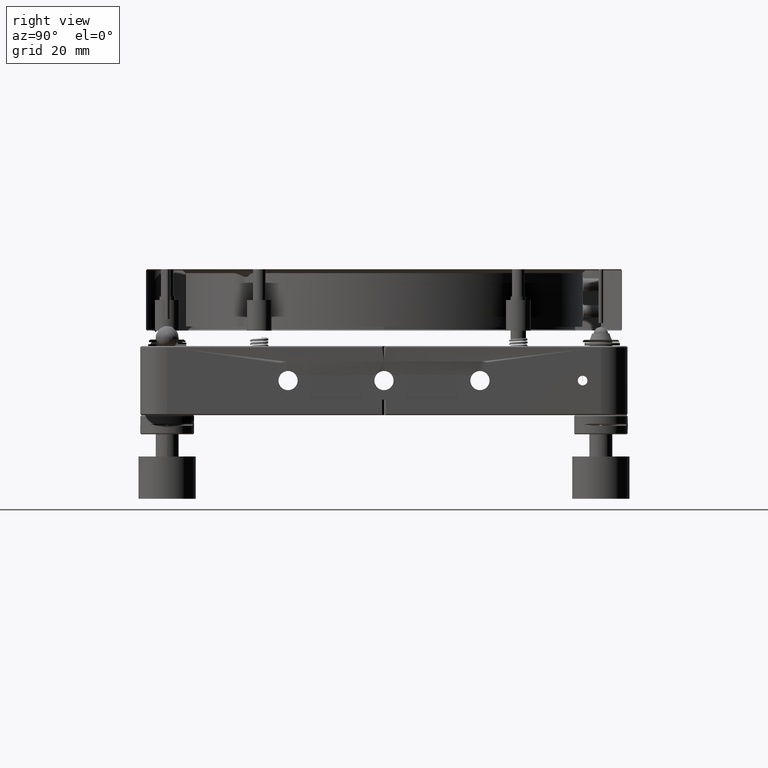
[diagram: clean part render]
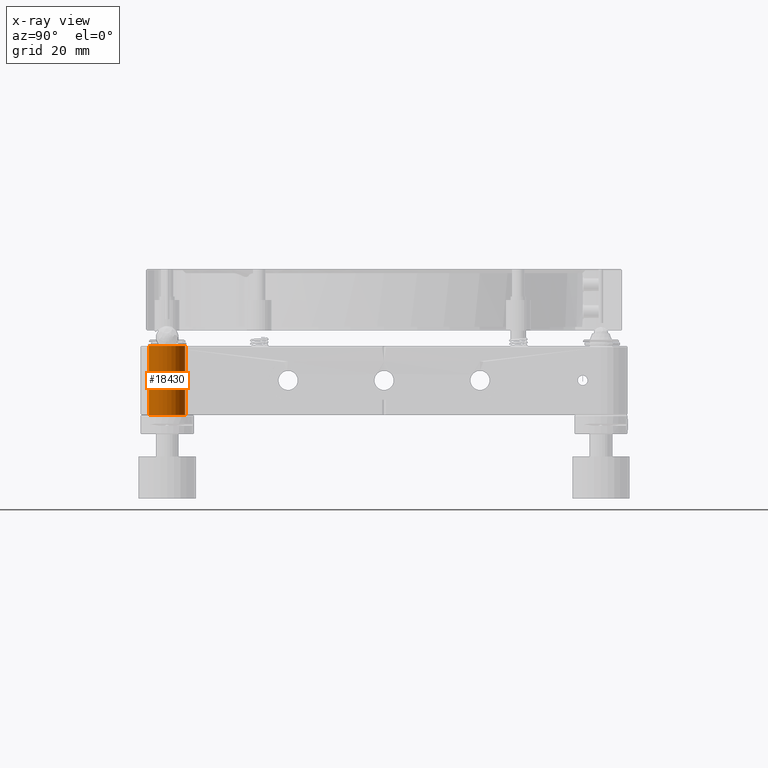
[diagram: x-ray — body ghosted, one internal face saturated and labeled with its STEP entity id]
A machine part, right view, then the same camera in x-ray: the body is ghosted and one INTERNAL B-rep face — a face not visible from any outside direction — is saturated and labeled: STEP entity #18430.
In plain terms, the highlighted cylindrical surface (bore or boss wall) has radius 4.75 mm, axis along (0, 0, 1).
Its self-contained STEP definition (entity closure, byte-faithful):
#158 = CARTESIAN_POINT ( 'NONE',  ( 51.83963013020094479, -55.58121567309463273, -1.246652364468173957 ) ) ;
#268 = CARTESIAN_POINT ( 'NONE',  ( 51.95817678557235553, -55.09883759834312400, -1.233225530988809160 ) ) ;
#325 = CARTESIAN_POINT ( 'NONE',  ( 52.90948984755967643, -59.60978625027490807, -0.4671262269104471399 ) ) ;
#411 = CARTESIAN_POINT ( 'NONE',  ( 56.50000000000000000, -56.49999999999997868, 9.000000000000001776 ) ) ;
#427 = CARTESIAN_POINT ( 'NONE',  ( 51.75000000000000711, -56.75524200507437200, 1.249999999999990896 ) ) ;
#482 = CARTESIAN_POINT ( 'NONE',  ( 52.60676671297941454, -53.77840083499267365, -0.9107877955616463517 ) ) ;
#531 = CARTESIAN_POINT ( 'NONE',  ( 52.35241392742734234, -58.82076016680218800, 1.099393770590665564 ) ) ;
#592 = CARTESIAN_POINT ( 'NONE',  ( 52.65555730412518898, -53.71022128200144152, -0.8617038190297797717 ) ) ;
#643 = CARTESIAN_POINT ( 'NONE',  ( 51.75000000000000711, -56.49999999999997868, 1.249999999999990674 ) ) ;
#645 = FACE_OUTER_BOUND ( 'NONE', #1997, .T. ) ;
#699 = CARTESIAN_POINT ( 'NONE',  ( 52.21942940587179294, -54.44080892585230913, 1.158574036355638270 ) ) ;
#753 = CARTESIAN_POINT ( 'NONE',  ( 52.89654190907567965, -59.59477437815920098, 0.4980446269706901297 ) ) ;
#806 = CARTESIAN_POINT ( 'NONE',  ( 52.95608324729745675, -53.33711602950457120, -0.3385246346343642743 ) ) ;
#862 = CARTESIAN_POINT ( 'NONE',  ( 51.89752413285012267, -57.67621333665911720, -1.241379538290144691 ) ) ;
#918 = CARTESIAN_POINT ( 'NONE',  ( 52.68415686764897288, -53.67124329905084323, 0.8305868746530362667 ) ) ;
#1016 = EDGE_CURVE ( 'NONE', #12955, #12955, #6164, .T. ) ;
#1032 = CARTESIAN_POINT ( 'NONE',  ( 52.11821499218798692, -54.66432527305133249, 1.195041825235785948 ) ) ;
#1090 = CARTESIAN_POINT ( 'NONE',  ( 52.67494531118860834, -59.31628675816777019, -0.8408252169409401455 ) ) ;
#1146 = CARTESIAN_POINT ( 'NONE',  ( 52.98900425387397917, -53.30071075431168026, 0.1693498376448943077 ) ) ;
#1202 = CARTESIAN_POINT ( 'NONE',  ( 52.71250390512398099, -59.36670155956729644, -0.7979159601737559893 ) ) ;
#1268 = EDGE_CURVE ( 'NONE', #6010, #18295, #10537, .T. ) ;
#1317 = CARTESIAN_POINT ( 'NONE',  ( 52.07110803341970495, -58.21733148007632508, -1.208351370596022489 ) ) ;
#1944 = CARTESIAN_POINT ( 'NONE',  ( 51.83401107047206580, -55.61001606071156544, -1.246979576963765268 ) ) ;
#1997 = EDGE_LOOP ( 'NONE', ( #13276 ) ) ;
#2104 = CARTESIAN_POINT ( 'NONE',  ( 52.65515084643900678, -59.28921853726073721, 0.8621307196366957415 ) ) ;
#2205 = CARTESIAN_POINT ( 'NONE',  ( 52.66650235471627184, -59.30478351395908021, 0.8500196251934206693 ) ) ;
#2261 = CARTESIAN_POINT ( 'NONE',  ( 52.63949463706163812, -53.73243183127801359, -0.8783913834846904800 ) ) ;
#2366 = CARTESIAN_POINT ( 'NONE',  ( 52.76072138413938006, -53.57057833250709677, 0.7364670798159901333 ) ) ;
#2421 = CARTESIAN_POINT ( 'NONE',  ( 52.17551003702303802, -58.46502003893687061, 1.175344519985096481 ) ) ;
#2479 = CARTESIAN_POINT ( 'NONE',  ( 51.86377503015284418, -55.46656666616790687, 1.244812772979155380 ) ) ;
#2533 = CARTESIAN_POINT ( 'NONE',  ( 52.18800942727093428, -58.49230423551371416, -1.170749297480309314 ) ) ;
#2589 = CARTESIAN_POINT ( 'NONE',  ( 51.94908524712035813, -55.13656096658643690, 1.234469859195693298 ) ) ;
#2704 = CARTESIAN_POINT ( 'NONE',  ( 52.83859975247499818, -53.47338566512480185, 0.6186842006813190187 ) ) ;
#2756 = CARTESIAN_POINT ( 'NONE',  ( 51.99653459297263680, -58.01040365417529898, -1.225795566611023846 ) ) ;
#2817 = CARTESIAN_POINT ( 'NONE',  ( 51.99647651750669297, -54.98976950469769065, 1.225808721972149407 ) ) ;
#2983 = CARTESIAN_POINT ( 'NONE',  ( 51.75000000000001421, -56.75506608117070328, -1.249999999999991118 ) ) ;
#3497 = CARTESIAN_POINT ( 'NONE',  ( 52.18026367348950600, -54.52454634192662297, -1.173618648644356499 ) ) ;
#3608 = CARTESIAN_POINT ( 'NONE',  ( 51.85572234641507805, -55.50338528130389903, -1.245514199850097814 ) ) ;
#3662 = CARTESIAN_POINT ( 'NONE',  ( 52.93812556782636136, -59.64255256502151070, -0.3894453545636706870 ) ) ;
#3715 = CARTESIAN_POINT ( 'NONE',  ( 52.26631229329103689, -54.33703623918297865, -1.141857201560756652 ) ) ;
#3769 = CARTESIAN_POINT ( 'NONE',  ( 52.89327794804412264, -59.59096908178098317, 0.5054754897701434491 ) ) ;
#3820 = CARTESIAN_POINT ( 'NONE',  ( 51.85866038234621556, -55.48981764401247574, -1.245267512304593094 ) ) ;
#3873 = CARTESIAN_POINT ( 'NONE',  ( 51.85112560587545971, -57.47504563842522884, 1.245877198309006673 ) ) ;
#3895 = AXIS2_PLACEMENT_3D ( 'NONE', #4206, #5989, #15840 ) ;
#3986 = CARTESIAN_POINT ( 'NONE',  ( 52.15823728329703357, -58.42668157541505991, 1.181455424084209893 ) ) ;
#4093 = CARTESIAN_POINT ( 'NONE',  ( 52.60634183332897607, -59.22099167461250602, 0.9111867238760400500 ) ) ;
#4149 = CARTESIAN_POINT ( 'NONE',  ( 52.99783102578385297, -53.29105075095761634, 0.08454399465350427578 ) ) ;
#4203 = CARTESIAN_POINT ( 'NONE',  ( 51.86060914557158696, -57.51909863940166900, -1.245096809263467330 ) ) ;
#4206 = CARTESIAN_POINT ( 'NONE',  ( 56.50000000000000000, -56.49999999999997868, -9.000000000000001776 ) ) ;
#4264 = CARTESIAN_POINT ( 'NONE',  ( 51.86044602291694616, -55.48164423912800913, 1.245111289791943632 ) ) ;
#4317 = CARTESIAN_POINT ( 'NONE',  ( 52.15050568670812936, -58.41059839029890099, -1.184601335666807032 ) ) ;
#4376 = CARTESIAN_POINT ( 'NONE',  ( 51.86846999175777739, -55.44563236207375923, 1.244379357600756686 ) ) ;
#4433 = CARTESIAN_POINT ( 'NONE',  ( 52.68422143889025477, -59.32884380846566330, -0.8305143037295669162 ) ) ;
#4486 = CARTESIAN_POINT ( 'NONE',  ( 52.96507992516159646, -53.32714623070128113, 0.2950021569652557796 ) ) ;
#4539 = CARTESIAN_POINT ( 'NONE',  ( 51.81553686150226667, -57.30452181574425197, -1.248005662686368256 ) ) ;
#4653 = CARTESIAN_POINT ( 'NONE',  ( 51.84110746466127040, -57.42977652643260456, -1.246809060298195160 ) ) ;
#5448 = CARTESIAN_POINT ( 'NONE',  ( 53.00008649816203388, -59.71140241889889211, -0.08502986227146409892 ) ) ;
#5505 = CARTESIAN_POINT ( 'NONE',  ( 52.76082931135520937, -53.57000428074626797, -0.7389398376298031978 ) ) ;
#5553 = CARTESIAN_POINT ( 'NONE',  ( 52.17976845552311715, -58.47437041256933554, 1.173800082044121229 ) ) ;
#5608 = CARTESIAN_POINT ( 'NONE',  ( 51.77007348550007038, -56.03161418387185222, -1.249597276928493761 ) ) ;
#5659 = CARTESIAN_POINT ( 'NONE',  ( 51.85888088063377666, -57.51119491324600830, 1.245248834414059091 ) ) ;
#5769 = CARTESIAN_POINT ( 'NONE',  ( 51.90400962228702042, -57.71776696922444216, 1.241282777378503122 ) ) ;
#5783 = EDGE_LOOP ( 'NONE', ( #20940 ) ) ;
#5824 = CARTESIAN_POINT ( 'NONE',  ( 51.99874621512071826, -54.98301362036440310, 1.225350375440184214 ) ) ;
#5879 = CARTESIAN_POINT ( 'NONE',  ( 52.13381512849083066, -58.37111878331591441, 1.189626560648923581 ) ) ;
#5936 = CARTESIAN_POINT ( 'NONE',  ( 52.20099113211828268, -54.47977920006513131, 1.165823166619124995 ) ) ;
#5989 = DIRECTION ( 'NONE',  ( 0.000000000000000000, 0.000000000000000000, 1.000000000000000000 ) ) ;
#6010 = VERTEX_POINT ( 'NONE', #12165 ) ;
#6044 = CARTESIAN_POINT ( 'NONE',  ( 51.75000000000000711, -56.49999999999997868, 1.249999999999990674 ) ) ;
#6149 = CARTESIAN_POINT ( 'NONE',  ( 52.90854544786549241, -53.39129030551331567, 0.4696943907504245730 ) ) ;
#6164 = CIRCLE ( 'NONE', #21842, 4.749999999999997335 ) ;
#6208 = CARTESIAN_POINT ( 'NONE',  ( 52.11833426066809238, -58.33596056743274971, -1.195004846723017655 ) ) ;
#6268 = CARTESIAN_POINT ( 'NONE',  ( 51.75000000000000711, -56.24512599253943534, 1.249999999999990674 ) ) ;
#6327 = CARTESIAN_POINT ( 'NONE',  ( 52.20112989963170236, -58.52051603309638494, -1.165769480766795763 ) ) ;
#7127 = CARTESIAN_POINT ( 'NONE',  ( 52.11261340914817453, -58.32064829819749718, 1.196057777072289996 ) ) ;
#7179 = CARTESIAN_POINT ( 'NONE',  ( 52.47781563462483945, -53.97195716768685259, -1.017135657092233192 ) ) ;
#7230 = CARTESIAN_POINT ( 'NONE',  ( 52.96551865143495519, -59.67487634009545872, 0.3355919955507555286 ) ) ;
#7288 = CARTESIAN_POINT ( 'NONE',  ( 51.81665927454797327, -55.70443978229326376, -1.247885703874632934 ) ) ;
#7341 = CARTESIAN_POINT ( 'NONE',  ( 52.96690811136948440, -59.67488806649829058, -0.2902805537472990527 ) ) ;
#7359 = EDGE_LOOP ( 'NONE', ( #19556, #18790 ) ) ;
#7398 = CARTESIAN_POINT ( 'NONE',  ( 52.83673102166429203, -53.47615155299305911, -0.6189273124185862285 ) ) ;
#7451 = CARTESIAN_POINT ( 'NONE',  ( 51.95775292267685330, -57.89979769061262260, 1.233294705601362118 ) ) ;
#7557 = CARTESIAN_POINT ( 'NONE',  ( 51.81644105296688707, -57.29426605285843976, 1.247899527872363246 ) ) ;
#7615 = CARTESIAN_POINT ( 'NONE',  ( 52.25650395717656238, -54.36475865762729853, 1.143090953252663855 ) ) ;
#7669 = CARTESIAN_POINT ( 'NONE',  ( 51.87812618340839066, -57.59626207838149980, -1.243442158951918231 ) ) ;
#7725 = CARTESIAN_POINT ( 'NONE',  ( 51.84097073047816906, -55.57091476299586219, 1.246818641775230052 ) ) ;
#7776 = CARTESIAN_POINT ( 'NONE',  ( 51.85956857298345568, -57.51434606747675815, -1.245188661230877347 ) ) ;
#7835 = CARTESIAN_POINT ( 'NONE',  ( 52.18464935946610694, -54.51498810342392431, 1.172000181460119306 ) ) ;
#7890 = CARTESIAN_POINT ( 'NONE',  ( 52.39512928464701247, -58.89145064556802822, -1.071448363490502986 ) ) ;
#7948 = CARTESIAN_POINT ( 'NONE',  ( 51.86177585114344879, -55.47560441872675341, 1.244992664168030228 ) ) ;
#8006 = CARTESIAN_POINT ( 'NONE',  ( 52.69279561735215367, -59.34039683140411370, -0.8208422494390072988 ) ) ;
#8606 = CARTESIAN_POINT ( 'NONE',  ( 56.50000000000000000, -56.49999999999997868, -9.000000000000001776 ) ) ;
#8800 = CARTESIAN_POINT ( 'NONE',  ( 51.85875535663014091, -57.51062297668399026, 1.245260110592889102 ) ) ;
#8809 = CIRCLE ( 'NONE', #21983, 4.749999999999997335 ) ;
#8819 = DIRECTION ( 'NONE',  ( 1.000000000000000000, 0.000000000000000000, 0.000000000000000000 ) ) ;
#8849 = CARTESIAN_POINT ( 'NONE',  ( 51.85778916802345151, -55.49382317616051097, -1.245342137990935072 ) ) ;
#8904 = CARTESIAN_POINT ( 'NONE',  ( 52.81827730779206576, -59.50139346868952117, 0.6502612768248362540 ) ) ;
#8958 = CARTESIAN_POINT ( 'NONE',  ( 52.04203869636135948, -54.85795567599616618, -1.215097745341029878 ) ) ;
#9010 = CARTESIAN_POINT ( 'NONE',  ( 52.86187613825969578, -59.55396952876093764, 0.5715705434747938574 ) ) ;
#9012 = CYLINDRICAL_SURFACE ( 'NONE', #3895, 4.749999999999997335 ) ;
#9121 = CARTESIAN_POINT ( 'NONE',  ( 52.63908192799858909, -59.26699247939851034, 0.8788089539187101673 ) ) ;
#9175 = CARTESIAN_POINT ( 'NONE',  ( 52.00244603062272830, -54.97207931998134711, 1.224591733944129901 ) ) ;
#9228 = CARTESIAN_POINT ( 'NONE',  ( 52.87414635944917052, -59.56854049639716209, 0.5472223050447604376 ) ) ;
#9286 = CARTESIAN_POINT ( 'NONE',  ( 52.67489052944522854, -53.68378764627790645, 0.8408854720865472920 ) ) ;
#9339 = CARTESIAN_POINT ( 'NONE',  ( 52.83876728484369067, -59.52681761736813115, -0.6183975972955083611 ) ) ;
#9401 = CARTESIAN_POINT ( 'NONE',  ( 52.93020318932883583, -53.36644601338063154, 0.4121354537691231945 ) ) ;
#9515 = CARTESIAN_POINT ( 'NONE',  ( 52.87253341207029678, -53.43309041741640897, 0.5548884094399492151 ) ) ;
#9569 = CARTESIAN_POINT ( 'NONE',  ( 52.52041023765758609, -59.09833878531286899, -0.9890981116033759069 ) ) ;
#9628 = CARTESIAN_POINT ( 'NONE',  ( 53.00003011675630660, -53.28865903112456692, 0.04211514254437905003 ) ) ;
#10316 = CARTESIAN_POINT ( 'NONE',  ( 52.51865290257361352, -53.90840548717005731, -0.9868223872868007174 ) ) ;
#10425 = CARTESIAN_POINT ( 'NONE',  ( 51.85911358417926920, -55.48773328527816773, -1.245228773110127696 ) ) ;
#10537 = B_SPLINE_CURVE_WITH_KNOTS ( 'NONE', 3,
 ( #643, #427, #14158, #19071, #7557, #15730, #21054, #12261, #3873, #12476, #10695, #19285, #5659, #8800, #5769, #7451, #18966, #20842, #7127, #5879, #3986, #12367, #2421, #10799, #5553, #15838, #531, #14266, #12586, #19390, #4093, #9121, #2104, #19177, #2205, #17612, #17721, #15947, #8904, #17293, #9010, #9228, #16051, #3769, #753, #7230, #14375, #5448, #17400, #7341, #21161, #3662, #20947, #15626, #325, #13943, #21377, #9339, #19948, #14942, #14715, #1202, #8006, #4433, #21710, #1090, #12915, #9569, #7890, #11127, #16382, #16606, #21488, #6327, #19725, #2533, #17837, #4317, #6208, #1317, #14833, #11462, #11021, #13032, #11243, #2756, #19836, #21601, #16161, #862, #7669, #18058, #13149, #12804, #4203, #7776, #4653, #4539, #18278, #2983, #14488 ),
 .UNSPECIFIED., .F., .F.,
 ( 4, 2, 2, 2, 1, 1, 1, 2, 2, 2, 2, 1, 1, 1, 2, 2, 2, 2, 1, 1, 1, 2, 2, 2, 2, 1, 2, 2, 2, 2, 2, 1, 2, 2, 2, 2, 1, 1, 2, 2, 2, 2, 1, 1, 1, 2, 2, 2, 1, 1, 1, 2, 2, 2, 1, 1, 1, 1, 2, 2, 2, 4 ),
 ( 0.000000000000000000, 0.06249999999982001897, 0.09374999999973129827, 0.1093749999996869449, 0.1171874999996643657, 0.1210937499996552896, 0.1230468749996530831, 0.1240234374996549288, 0.1249999999996567468, 0.1874999999997307154, 0.2187499999997665201, 0.2343749999997862821, 0.2421874999997961908, 0.2460937499997990496, 0.2480468749997984113, 0.2499999999997977174, 0.3124999999997662981, 0.3437499999997509770, 0.3593749999997422617, 0.3671874999997386535, 0.3710937499997365441, 0.3730468749997362665, 0.3749999999997359335, 0.4062499999997533640, 0.4218749999997621347, 0.4296874999997665201, 0.4335937499997691846, 0.4374999999997718492, 0.4999999999998145928, 0.5312499999998359090, 0.5468749999998471223, 0.5546874999998524514, 0.5585937499998545608, 0.5624999999998567812, 0.5937499999998705480, 0.6093749999998787636, 0.6171874999998826494, 0.6210937499998859801, 0.6230468749998874234, 0.6249999999998889777, 0.6875000000000026645, 0.7187500000000598410, 0.7343750000000884848, 0.7421875000001022515, 0.7460937500001086908, 0.7480468750001114664, 0.7500000000001142419, 0.7812500000001609823, 0.7968750000001842970, 0.8046875000001959544, 0.8085937500002029488, 0.8105468750002063905, 0.8125000000002098322, 0.8437500000002807754, 0.8593750000003170797, 0.8671875000003351763, 0.8710937500003442802, 0.8730468750003488321, 0.8740234375003498313, 0.8750000000003507195, 0.9375000000001754152, 1.000000000000000000 ),
 .UNSPECIFIED. ) ;
#10538 = CARTESIAN_POINT ( 'NONE',  ( 52.66690428450259986, -53.69466722566031791, -0.8495860564886699162 ) ) ;
#10643 = CARTESIAN_POINT ( 'NONE',  ( 51.90441058766410976, -55.28074481405145235, -1.241234525183833926 ) ) ;
#10695 = CARTESIAN_POINT ( 'NONE',  ( 51.85743686212205716, -57.50454998723353128, 1.245372592700222381 ) ) ;
#10698 = CARTESIAN_POINT ( 'NONE',  ( 51.75000000000000711, -56.49999999999998579, -1.249999999999990674 ) ) ;
#10799 = CARTESIAN_POINT ( 'NONE',  ( 52.17894732834690785, -58.47256710965981341, 1.174097684911867612 ) ) ;
#10854 = CARTESIAN_POINT ( 'NONE',  ( 52.99104818512093118, -53.29836945889132238, -0.1705537167520519148 ) ) ;
#10968 = CARTESIAN_POINT ( 'NONE',  ( 52.00801112647071278, -54.95573090017825990, 1.223436133612187948 ) ) ;
#11021 = CARTESIAN_POINT ( 'NONE',  ( 52.00807733436749203, -58.04446173500075190, -1.223420605419027529 ) ) ;
#11074 = CARTESIAN_POINT ( 'NONE',  ( 52.95476775124411262, -53.33864590785552195, 0.3348522331909133953 ) ) ;
#11127 = CARTESIAN_POINT ( 'NONE',  ( 52.35255821944234356, -58.81719997233332720, -1.095897881855711686 ) ) ;
#11187 = CARTESIAN_POINT ( 'NONE',  ( 52.88604451013604546, -53.41747288903188462, -0.5217867449049524708 ) ) ;
#11243 = CARTESIAN_POINT ( 'NONE',  ( 51.99880740036763171, -58.01716792777693144, -1.225336456281728159 ) ) ;
#11299 = CARTESIAN_POINT ( 'NONE',  ( 52.15037408862205126, -54.58970164918659407, 1.184645482378633208 ) ) ;
#11462 = CARTESIAN_POINT ( 'NONE',  ( 52.02117362204078432, -58.08225199355832302, -1.220598419220283004 ) ) ;
#12101 = CARTESIAN_POINT ( 'NONE',  ( 51.80440423934688710, -55.77809074055927852, -1.248389107714003909 ) ) ;
#12165 = CARTESIAN_POINT ( 'NONE',  ( 51.75000000000000711, -56.49999999999997868, 1.249999999999990674 ) ) ;
#12205 = CARTESIAN_POINT ( 'NONE',  ( 52.17083650079390367, -54.54527097032433858, -1.177027422566067516 ) ) ;
#12242 = DIRECTION ( 'NONE',  ( 1.000000000000000000, 0.000000000000000000, 0.000000000000000000 ) ) ;
#12261 = CARTESIAN_POINT ( 'NONE',  ( 51.84727312953049250, -57.45645704330755166, 1.246149134432675165 ) ) ;
#12301 = EDGE_CURVE ( 'NONE', #17160, #17160, #8809, .T. ) ;
#12312 = CARTESIAN_POINT ( 'NONE',  ( 52.81858652225135131, -53.49822754122381951, -0.6497532714450704461 ) ) ;
#12367 = CARTESIAN_POINT ( 'NONE',  ( 52.17034546102571824, -58.45364116574003077, 1.177202843117484354 ) ) ;
#12422 = CARTESIAN_POINT ( 'NONE',  ( 51.85145729616773735, -55.52337383141610871, -1.245850064599178797 ) ) ;
#12476 = CARTESIAN_POINT ( 'NONE',  ( 51.85537676880395708, -57.49500285340413797, 1.245543529559568485 ) ) ;
#12533 = CARTESIAN_POINT ( 'NONE',  ( 52.15872413354987458, -54.57222174299367623, -1.181287206090370745 ) ) ;
#12586 = CARTESIAN_POINT ( 'NONE',  ( 52.51819973245279982, -59.09089927477255344, 0.9871735141165340899 ) ) ;
#12641 = CARTESIAN_POINT ( 'NONE',  ( 52.72876838988085524, -53.61198751541989793, 0.7777747876816394346 ) ) ;
#12752 = CARTESIAN_POINT ( 'NONE',  ( 52.98208018464266900, -53.30830747885001131, 0.2131536206267379552 ) ) ;
#12804 = CARTESIAN_POINT ( 'NONE',  ( 51.86193819602559785, -57.52513035244204787, -1.244978078152182643 ) ) ;
#12864 = CARTESIAN_POINT ( 'NONE',  ( 51.91453778865798085, -55.25989553673575472, 1.239254005149311277 ) ) ;
#12915 = CARTESIAN_POINT ( 'NONE',  ( 52.60058213826772544, -59.21511775213693340, -0.9221956812899592126 ) ) ;
#12955 = VERTEX_POINT ( 'NONE', #21086 ) ;
#12978 = CARTESIAN_POINT ( 'NONE',  ( 52.18786904861003251, -54.50799961208789313, 1.170801807476477885 ) ) ;
#13032 = CARTESIAN_POINT ( 'NONE',  ( 52.00250922673120613, -58.02810669929233711, -1.224577174507620381 ) ) ;
#13111 = B_SPLINE_CURVE_WITH_KNOTS ( 'NONE', 3,
 ( #13780, #15574, #5608, #12101, #7288, #1944, #158, #20577, #12422, #3608, #8849, #3820, #19234, #10425, #10643, #268, #8958, #13887, #20684, #15678, #12533, #12205, #17451, #19022, #3497, #3715, #15784, #7179, #10316, #17558, #482, #2261, #592, #17347, #10538, #13995, #20789, #5505, #12312, #7398, #14214, #21001, #11187, #14547, #21433, #806, #10854, #18005, #9628, #4149, #1146, #12752, #4486, #11074, #19560, #9401, #21323, #6149, #9515, #2704, #14321, #2366, #12641, #16104, #21214, #918, #16330, #9286, #15999, #17783, #14431, #19671, #17889, #7615, #699, #5936, #14664, #12978, #7835, #11299, #1032, #19781, #21105, #18115, #10968, #9175, #5824, #2817, #17666, #2589, #12864, #16443, #19445, #4376, #2479, #7948, #4264, #16217, #7725, #21547, #14773, #6268, #6044 ),
 .UNSPECIFIED., .F., .F.,
 ( 4, 2, 2, 2, 1, 1, 1, 2, 2, 2, 2, 1, 1, 1, 2, 2, 2, 2, 1, 1, 1, 2, 2, 2, 2, 2, 2, 2, 2, 2, 2, 2, 2, 2, 2, 2, 1, 1, 2, 2, 2, 2, 1, 1, 1, 2, 2, 2, 1, 1, 1, 2, 2, 2, 1, 1, 1, 1, 2, 2, 2, 4 ),
 ( 0.000000000000000000, 0.06250000000000252576, 0.09375000000000378864, 0.1093750000000044131, 0.1171875000000067168, 0.1210937500000100892, 0.1230468750000122680, 0.1240234375000109635, 0.1250000000000096589, 0.1874999999998785416, 0.2187499999998129829, 0.2343749999997807587, 0.2421874999997666311, 0.2460937499997595534, 0.2480468749997581102, 0.2499999999997566669, 0.3124999999997312150, 0.3437499999997201683, 0.3593749999997153943, 0.3671874999997112310, 0.3710937499997074007, 0.3730468749997072897, 0.3749999999997071232, 0.4062499999996989630, 0.4218749999996948552, 0.4296874999996916356, 0.4374999999996883604, 0.4687499999996764255, 0.4999999999996644906, 0.5156249999996584954, 0.5312499999996523892, 0.5468749999996463940, 0.5546874999996433964, 0.5624999999996403988, 0.5937499999996266320, 0.6093749999996190825, 0.6171874999996155298, 0.6210937499996150857, 0.6230468749996156408, 0.6249999999996160849, 0.6874999999996759259, 0.7187499999997063460, 0.7343749999997208899, 0.7421874999997272182, 0.7460937499997289946, 0.7480468749997307709, 0.7499999999997326583, 0.7812499999997786215, 0.7968749999998017142, 0.8046874999998121503, 0.8085937499998161471, 0.8105468749998182565, 0.8124999999998203659, 0.8437499999998796518, 0.8593749999999108491, 0.8671874999999272804, 0.8710937499999351630, 0.8730468749999402700, 0.8740234374999417133, 0.8749999999999431566, 0.9374999999999715783, 1.000000000000000000 ),
 .UNSPECIFIED. ) ;
#13149 = CARTESIAN_POINT ( 'NONE',  ( 51.86393619228421414, -57.53415599610502795, -1.244798031557802664 ) ) ;
#13276 = ORIENTED_EDGE ( 'NONE', *, *, #1016, .F. ) ;
#13371 = CARTESIAN_POINT ( 'NONE',  ( 61.25000000000000000, -56.49999999999997868, 9.000000000000001776 ) ) ;
#13780 = CARTESIAN_POINT ( 'NONE',  ( 51.75000000000000711, -56.49999999999998579, -1.249999999999990674 ) ) ;
#13887 = CARTESIAN_POINT ( 'NONE',  ( 52.07055398424427750, -54.78297078877606907, -1.208036101065895984 ) ) ;
#13943 = CARTESIAN_POINT ( 'NONE',  ( 52.90512618363246133, -59.60474035712394425, -0.4777743351601064781 ) ) ;
#13995 = CARTESIAN_POINT ( 'NONE',  ( 52.66850729311316570, -53.69247658797488043, -0.8478575707391583505 ) ) ;
#14158 = CARTESIAN_POINT ( 'NONE',  ( 51.77000760241975996, -56.96761798828816126, 1.249599910070919195 ) ) ;
#14214 = CARTESIAN_POINT ( 'NONE',  ( 52.86214738096700216, -53.44570743350925568, -0.5710427184315022275 ) ) ;
#14266 = CARTESIAN_POINT ( 'NONE',  ( 52.47735155423958986, -59.02730567544269746, 1.017465603621813042 ) ) ;
#14321 = CARTESIAN_POINT ( 'NONE',  ( 52.78102268424934351, -53.54489522163863313, 0.7078387519779953951 ) ) ;
#14375 = CARTESIAN_POINT ( 'NONE',  ( 52.99982630752075607, -59.71111883746244331, 0.1723447112484833288 ) ) ;
#14431 = CARTESIAN_POINT ( 'NONE',  ( 52.39502077394992341, -54.10873493213811969, 1.071513464927483339 ) ) ;
#14488 = CARTESIAN_POINT ( 'NONE',  ( 51.75000000000000711, -56.49999999999998579, -1.249999999999990674 ) ) ;
#14547 = CARTESIAN_POINT ( 'NONE',  ( 52.89302116521252373, -53.40931287702780139, -0.5063604402202133148 ) ) ;
#14664 = CARTESIAN_POINT ( 'NONE',  ( 52.19311424637095342, -54.49668425040771780, 1.168824420027479993 ) ) ;
#14715 = CARTESIAN_POINT ( 'NONE',  ( 52.72886743849538504, -59.38814188999725729, -0.7776508620824664764 ) ) ;
#14773 = CARTESIAN_POINT ( 'NONE',  ( 51.76994976033486040, -56.03306167807271265, 1.249602330221895929 ) ) ;
#14833 = CARTESIAN_POINT ( 'NONE',  ( 52.04775431978374911, -58.15634965414348301, -1.214459946854697048 ) ) ;
#14942 = CARTESIAN_POINT ( 'NONE',  ( 52.76084323231622619, -59.42957747115073630, -0.7363020085575213702 ) ) ;
#15574 = CARTESIAN_POINT ( 'NONE',  ( 51.75000000000002132, -56.24433818286457409, -1.249999999999990452 ) ) ;
#15626 = CARTESIAN_POINT ( 'NONE',  ( 52.91709917527533946, -59.61855020119333659, -0.4478411863597511755 ) ) ;
#15678 = CARTESIAN_POINT ( 'NONE',  ( 52.13429396582491648, -54.62776456484086651, -1.189472397666427650 ) ) ;
#15730 = CARTESIAN_POINT ( 'NONE',  ( 51.83373623590279067, -57.38853994121684821, 1.246999325531952252 ) ) ;
#15784 = CARTESIAN_POINT ( 'NONE',  ( 52.35290455144276933, -54.17836913682030087, -1.099127198322317200 ) ) ;
#15838 = CARTESIAN_POINT ( 'NONE',  ( 52.26581213831090622, -58.66199353575785835, 1.142081746507250140 ) ) ;
#15840 = DIRECTION ( 'NONE',  ( 1.000000000000000000, 0.000000000000000000, 0.000000000000000000 ) ) ;
#15947 = CARTESIAN_POINT ( 'NONE',  ( 52.76047746465450672, -59.42954777269249433, 0.7394206924891968402 ) ) ;
#15999 = CARTESIAN_POINT ( 'NONE',  ( 52.60051302177704002, -53.78498031631559684, 0.9222610825065361562 ) ) ;
#16051 = CARTESIAN_POINT ( 'NONE',  ( 52.88571961972215973, -59.58212769971159162, 0.5222565512605492621 ) ) ;
#16104 = CARTESIAN_POINT ( 'NONE',  ( 52.71241702356081760, -53.63341338742304742, 0.7980199456416293691 ) ) ;
#16161 = CARTESIAN_POINT ( 'NONE',  ( 51.91466252701764716, -57.74056394058462871, -1.239237191651832548 ) ) ;
#16217 = CARTESIAN_POINT ( 'NONE',  ( 51.85940426457927543, -55.48640590413408802, 1.245203108301719652 ) ) ;
#16330 = CARTESIAN_POINT ( 'NONE',  ( 52.67841750555336233, -53.67900185714092487, 0.8369946806623353996 ) ) ;
#16382 = CARTESIAN_POINT ( 'NONE',  ( 52.28862116612182831, -58.69746116604756736, -1.128071311007777577 ) ) ;
#16443 = CARTESIAN_POINT ( 'NONE',  ( 51.89738575332139447, -55.32432430788335154, 1.241396125741643930 ) ) ;
#16606 = CARTESIAN_POINT ( 'NONE',  ( 52.25663526256055036, -58.63550176714485929, -1.143032813484869736 ) ) ;
#17160 = VERTEX_POINT ( 'NONE', #13371 ) ;
#17293 = CARTESIAN_POINT ( 'NONE',  ( 52.83643666541904338, -59.52349204685121720, 0.6194436665292814004 ) ) ;
#17313 = DIRECTION ( 'NONE',  ( 0.000000000000000000, 0.000000000000000000, 1.000000000000000000 ) ) ;
#17347 = CARTESIAN_POINT ( 'NONE',  ( 52.66237453832968640, -53.70086699942849862, -0.8544471431741553769 ) ) ;
#17400 = CARTESIAN_POINT ( 'NONE',  ( 52.99174419506972811, -59.70238213215926493, -0.1685143568304163231 ) ) ;
#17451 = CARTESIAN_POINT ( 'NONE',  ( 52.17600291611145025, -54.53389562706096427, -1.175165975112165695 ) ) ;
#17558 = CARTESIAN_POINT ( 'NONE',  ( 52.57775302034078635, -53.82049905060041795, -0.9368783484855472965 ) ) ;
#17595 = DIRECTION ( 'NONE',  ( -0.000000000000000000, -0.000000000000000000, -1.000000000000000000 ) ) ;
#17612 = CARTESIAN_POINT ( 'NONE',  ( 52.66810578810439125, -59.30697539237817750, 0.8482923256014089919 ) ) ;
#17666 = CARTESIAN_POINT ( 'NONE',  ( 51.97242871590022872, -55.06170438274205736, 1.230613888868006711 ) ) ;
#17721 = CARTESIAN_POINT ( 'NONE',  ( 52.71749766881990240, -59.37425588388229869, 0.7944690826356929358 ) ) ;
#17783 = CARTESIAN_POINT ( 'NONE',  ( 52.52032496510676651, -53.90178928857496032, 0.9891653091735864711 ) ) ;
#17837 = CARTESIAN_POINT ( 'NONE',  ( 52.18479095017927705, -58.48531968282853910, -1.171947662415737446 ) ) ;
#17889 = CARTESIAN_POINT ( 'NONE',  ( 52.28849476851505784, -54.30278084231591862, 1.128131471891277382 ) ) ;
#18005 = CARTESIAN_POINT ( 'NONE',  ( 52.99993962806080816, -53.28875765462292691, -0.08524920562328162921 ) ) ;
#18058 = CARTESIAN_POINT ( 'NONE',  ( 51.86862828462765407, -57.55506241106208165, -1.244364273345407446 ) ) ;
#18115 = CARTESIAN_POINT ( 'NONE',  ( 52.02110042607754536, -54.91795544496195447, 1.220616266222626534 ) ) ;
#18278 = CARTESIAN_POINT ( 'NONE',  ( 51.76997984635242744, -56.96728962543599550, -1.249601132537266013 ) ) ;
#18295 = VERTEX_POINT ( 'NONE', #10698 ) ;
#18430 = ADVANCED_FACE ( 'NONE', ( #19505, #21269, #645 ), #9012, .F. ) ;
#18790 = ORIENTED_EDGE ( 'NONE', *, *, #20645, .F. ) ;
#18966 = CARTESIAN_POINT ( 'NONE',  ( 52.04158697845382875, -58.14081956681145869, 1.215204705478876379 ) ) ;
#19022 = CARTESIAN_POINT ( 'NONE',  ( 52.17944144388072658, -54.52635085440414286, -1.173917048822121778 ) ) ;
#19071 = CARTESIAN_POINT ( 'NONE',  ( 51.80422605496572430, -57.22073276820991339, 1.248399640283703871 ) ) ;
#19177 = CARTESIAN_POINT ( 'NONE',  ( 52.66197079309539930, -59.29857938310130550, 0.8548780443793970729 ) ) ;
#19234 = CARTESIAN_POINT ( 'NONE',  ( 51.85923790215127127, -55.48716783723960333, -1.245217565204905119 ) ) ;
#19285 = CARTESIAN_POINT ( 'NONE',  ( 51.85830524061070435, -57.50854925183620736, 1.245298454942371347 ) ) ;
#19390 = CARTESIAN_POINT ( 'NONE',  ( 52.57731835291569666, -59.17886483445726498, 0.9372613290851219414 ) ) ;
#19445 = CARTESIAN_POINT ( 'NONE',  ( 51.87797404227686116, -55.40437837561209733, 1.243457849759861178 ) ) ;
#19505 = FACE_OUTER_BOUND ( 'NONE', #5783, .T. ) ;
#19556 = ORIENTED_EDGE ( 'NONE', *, *, #1268, .F. ) ;
#19560 = CARTESIAN_POINT ( 'NONE',  ( 52.93667244735952693, -53.35909573514606308, 0.3930160596139978813 ) ) ;
#19671 = CARTESIAN_POINT ( 'NONE',  ( 52.35244214842066413, -54.18300685484863521, 1.095961486137668972 ) ) ;
#19725 = CARTESIAN_POINT ( 'NONE',  ( 52.19325398630369506, -58.50361614079668016, -1.168771435946139858 ) ) ;
#19781 = CARTESIAN_POINT ( 'NONE',  ( 52.07100987684591331, -54.78292199406534024, 1.208378664275225223 ) ) ;
#19836 = CARTESIAN_POINT ( 'NONE',  ( 51.97250540286378140, -57.93853383953122460, -1.230598491906492065 ) ) ;
#19948 = CARTESIAN_POINT ( 'NONE',  ( 52.78115768241219286, -59.45527482440351719, -0.7076445630843917201 ) ) ;
#20577 = CARTESIAN_POINT ( 'NONE',  ( 51.84759222940965628, -55.54199168749693882, -1.246123790436834966 ) ) ;
#20645 = EDGE_CURVE ( 'NONE', #18295, #6010, #13111, .T. ) ;
#20684 = CARTESIAN_POINT ( 'NONE',  ( 52.11308585522492365, -54.67821389399171750, -1.195915061064384721 ) ) ;
#20789 = CARTESIAN_POINT ( 'NONE',  ( 52.71787535231455024, -53.62524860546204764, -0.7940091338933371601 ) ) ;
#20842 = CARTESIAN_POINT ( 'NONE',  ( 52.07009413480527371, -58.21584361722661072, 1.208156723361918816 ) ) ;
#20940 = ORIENTED_EDGE ( 'NONE', *, *, #12301, .F. ) ;
#20947 = CARTESIAN_POINT ( 'NONE',  ( 52.92815576814496126, -59.63123577971860101, -0.4188054835049075386 ) ) ;
#21001 = CARTESIAN_POINT ( 'NONE',  ( 52.87031968613855781, -53.43600448894940058, -0.5548069111945806986 ) ) ;
#21054 = CARTESIAN_POINT ( 'NONE',  ( 51.83933697500343385, -57.41729482444646493, 1.246674252464581745 ) ) ;
#21086 = CARTESIAN_POINT ( 'NONE',  ( 61.25000000000000000, -56.49999999999997868, -9.000000000000001776 ) ) ;
#21105 = CARTESIAN_POINT ( 'NONE',  ( 52.04766736763806989, -54.84388487074087948, 1.214482664983371096 ) ) ;
#21161 = CARTESIAN_POINT ( 'NONE',  ( 52.95658238137055918, -59.66338994718786637, -0.3302925285660023302 ) ) ;
#21214 = CARTESIAN_POINT ( 'NONE',  ( 52.69272417454631352, -53.65969897434031566, 0.8209240786424832903 ) ) ;
#21269 = FACE_BOUND ( 'NONE', #7359, .T. ) ;
#21323 = CARTESIAN_POINT ( 'NONE',  ( 52.91640915469495354, -53.38223052327757046, 0.4498371461075760802 ) ) ;
#21377 = CARTESIAN_POINT ( 'NONE',  ( 52.87271336039560765, -59.56712240426269034, -0.5545334476102581345 ) ) ;
#21433 = CARTESIAN_POINT ( 'NONE',  ( 52.93206796131469360, -53.36397508385223887, -0.4142769935773727985 ) ) ;
#21488 = CARTESIAN_POINT ( 'NONE',  ( 52.21956580726389774, -58.55947445755542446, -1.158518778535009508 ) ) ;
#21547 = CARTESIAN_POINT ( 'NONE',  ( 51.81543839857618394, -55.69607881685701045, 1.248011651109515840 ) ) ;
#21601 = CARTESIAN_POINT ( 'NONE',  ( 51.94918182292537523, -57.86375527367215454, -1.234453316947109247 ) ) ;
#21710 = CARTESIAN_POINT ( 'NONE',  ( 52.67847744041120706, -59.32107934072638500, -0.8369282292006728907 ) ) ;
#21842 = AXIS2_PLACEMENT_3D ( 'NONE', #8606, #17313, #8819 ) ;
#21983 = AXIS2_PLACEMENT_3D ( 'NONE', #411, #17595, #12242 ) ;